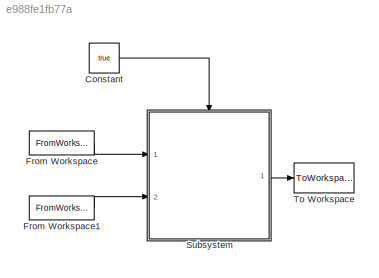
MODEL slx_e988fe1fb77a
KIND model
CONFIG AbsTol = auto
CONFIG EnableMultiTasking = off
CONFIG FixedStep = 1
CONFIG MaxStep = auto
CONFIG MinStep = auto
CONFIG RelTol = 1e-3
CONFIG SampleTimeConstraint = Unconstrained
CONFIG Solver = FixedStepAuto
CONFIG SolverName = FixedStepAuto
CONFIG StartTime = 0.0
CONFIG StopTime = duration
BLOCK [Constant] Constant
  Value = true
BLOCK [FromWorkspace] From Workspace
  SampleTime = 0
  VariableName = bp
  ZeroCross = on
BLOCK [FromWorkspace] From Workspace1
  SampleTime = 0
  VariableName = J
  ZeroCross = on
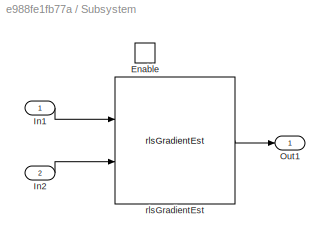
BLOCK [SubSystem] Subsystem
  Ports = [2, 1, 1]
  RequestExecContextInheritance = off
BLOCK [EnablePort] Subsystem/Enable
  Ports = []
BLOCK [Inport] Subsystem/In1
  IconDisplay = Port number
BLOCK [Inport] Subsystem/In2
  IconDisplay = Port number
  Port = 2
BLOCK [Outport] Subsystem/Out1
  IconDisplay = Port number
BLOCK [Reference] Subsystem/rlsGradientEst  REF=rlsGradientEst_cl/rlsGradientEst
  Ports = [2, 1]
  SourceBlock = rlsGradientEst_cl/rlsGradientEst
  SourceType = SubSystem
BLOCK [ToWorkspace] To Workspace
  FixptAsFi = on
  MaxDataPoints = inf
  Ports = [1]
  SampleTime = -1
  Save2DSignal = 3-D array (concatenate along third dimension)
  SaveFormat = Timeseries
  VariableName = estGrad
LINE Constant:1 -> Subsystem:enable
LINE From Workspace1:1 -> Subsystem:2
LINE From Workspace:1 -> Subsystem:1
LINE Subsystem/In1:1 -> Subsystem/rlsGradientEst:1
LINE Subsystem/In2:1 -> Subsystem/rlsGradientEst:2
LINE Subsystem/rlsGradientEst:1 -> Subsystem/Out1:1
LINE Subsystem:1 -> To Workspace:1
